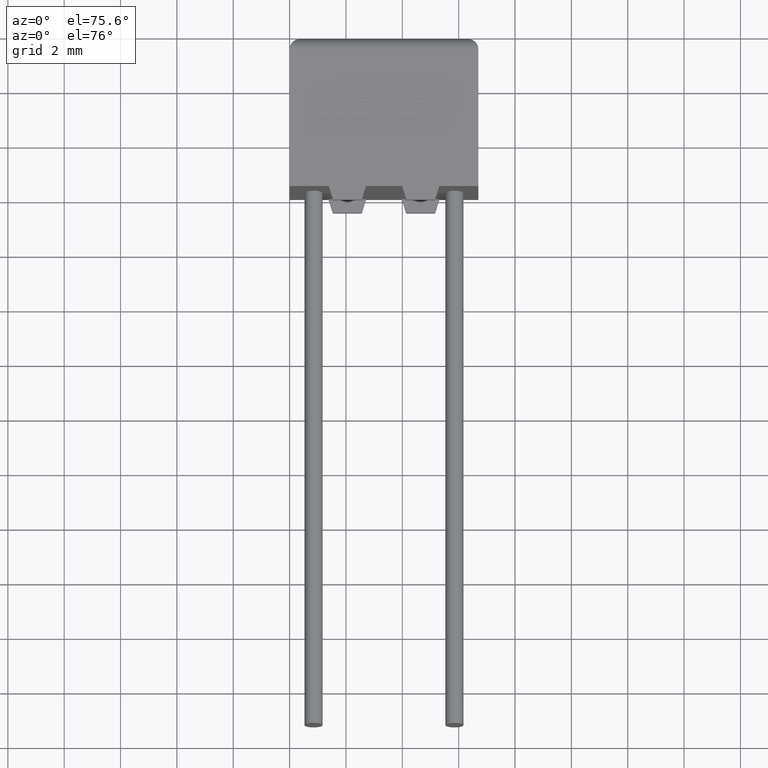
[diagram: clean part render]
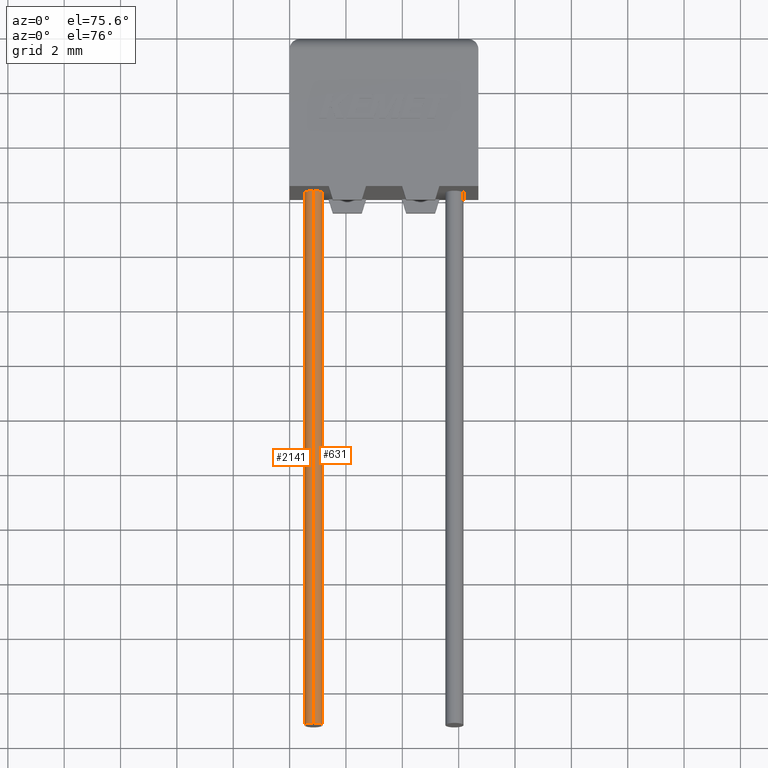
[diagram: same view with one multi-face feature highlighted, each face labeled with its STEP entity id]
A machine part, auxiliary view. The highlighted faces form ONE feature: a constant-radius fillet chain: 2 tangent blend faces with common blend radius 0.325 mm. The faces share edges in the B-rep.
Their STEP definitions:
[1] entity #631 (Cylinder):
#94 = AXIS2_PLACEMENT_3D ( 'NONE', #2441, #966, #3018 ) ;
#128 = CARTESIAN_POINT ( 'NONE',  ( 0.8500000000000000900, -19.50000000000000000, 1.000000000000000200 ) ) ;
#294 = EDGE_CURVE ( 'NONE', #1927, #1409, #2758, .T. ) ;
#319 = CARTESIAN_POINT ( 'NONE',  ( 0.8500000000000000900, 0.0000000000000000000, 1.325000000000000200 ) ) ;
#334 = CARTESIAN_POINT ( 'NONE',  ( 0.8500000000000000900, -19.50000000000000000, 1.325000000000000200 ) ) ;
#389 = CARTESIAN_POINT ( 'NONE',  ( 0.8500000000000000900, 0.0000000000000000000, 0.6750000000000002700 ) ) ;
#435 = ORIENTED_EDGE ( 'NONE', *, *, #1339, .T. ) ;
#555 = ORIENTED_EDGE ( 'NONE', *, *, #3115, .F. ) ;
#631 = ADVANCED_FACE ( 'NONE', ( #3191 ), #1085, .T. ) ;
#649 = CARTESIAN_POINT ( 'NONE',  ( 0.8500000000000000900, 0.0000000000000000000, 1.000000000000000200 ) ) ;
#836 = LINE ( 'NONE', #2413, #2748 ) ;
#862 = DIRECTION ( 'NONE',  ( -0.0000000000000000000, 1.000000000000000000, -0.0000000000000000000 ) ) ;
#875 = ORIENTED_EDGE ( 'NONE', *, *, #1188, .F. ) ;
#966 = DIRECTION ( 'NONE',  ( -0.0000000000000000000, 1.000000000000000000, -0.0000000000000000000 ) ) ;
#1085 = CYLINDRICAL_SURFACE ( 'NONE', #94, 0.3250000000000000100 ) ;
#1143 = DIRECTION ( 'NONE',  ( 0.0000000000000000000, -1.000000000000000000, 0.0000000000000000000 ) ) ;
#1151 = EDGE_LOOP ( 'NONE', ( #555, #435, #3132, #875 ) ) ;
#1168 = DIRECTION ( 'NONE',  ( -0.0000000000000000000, 1.000000000000000000, -0.0000000000000000000 ) ) ;
#1188 = EDGE_CURVE ( 'NONE', #1450, #1409, #836, .T. ) ;
#1230 = VERTEX_POINT ( 'NONE', #2924 ) ;
#1339 = EDGE_CURVE ( 'NONE', #1230, #1927, #1944, .T. ) ;
#1409 = VERTEX_POINT ( 'NONE', #319 ) ;
#1450 = VERTEX_POINT ( 'NONE', #334 ) ;
#1701 = AXIS2_PLACEMENT_3D ( 'NONE', #649, #2391, #1713 ) ;
#1713 = DIRECTION ( 'NONE',  ( 0.0000000000000000000, 0.0000000000000000000, 1.000000000000000000 ) ) ;
#1927 = VERTEX_POINT ( 'NONE', #389 ) ;
#1944 = LINE ( 'NONE', #2568, #2783 ) ;
#2239 = CIRCLE ( 'NONE', #2313, 0.3250000000000000100 ) ;
#2313 = AXIS2_PLACEMENT_3D ( 'NONE', #128, #1143, #3093 ) ;
#2391 = DIRECTION ( 'NONE',  ( -0.0000000000000000000, -1.000000000000000000, -0.0000000000000000000 ) ) ;
#2413 = CARTESIAN_POINT ( 'NONE',  ( 0.8500000000000000900, -19.50000000000000000, 1.325000000000000200 ) ) ;
#2441 = CARTESIAN_POINT ( 'NONE',  ( 0.8500000000000000900, -19.50000000000000000, 1.000000000000000200 ) ) ;
#2568 = CARTESIAN_POINT ( 'NONE',  ( 0.8500000000000000900, -19.50000000000000000, 0.6750000000000002700 ) ) ;
#2748 = VECTOR ( 'NONE', #1168, 1000.000000000000000 ) ;
#2758 = CIRCLE ( 'NONE', #1701, 0.3250000000000000100 ) ;
#2783 = VECTOR ( 'NONE', #862, 1000.000000000000000 ) ;
#2924 = CARTESIAN_POINT ( 'NONE',  ( 0.8500000000000000900, -19.50000000000000000, 0.6750000000000002700 ) ) ;
#3018 = DIRECTION ( 'NONE',  ( 0.0000000000000000000, 0.0000000000000000000, 1.000000000000000000 ) ) ;
#3093 = DIRECTION ( 'NONE',  ( 0.0000000000000000000, 0.0000000000000000000, -1.000000000000000000 ) ) ;
#3115 = EDGE_CURVE ( 'NONE', #1230, #1450, #2239, .T. ) ;
#3132 = ORIENTED_EDGE ( 'NONE', *, *, #294, .T. ) ;
#3191 = FACE_OUTER_BOUND ( 'NONE', #1151, .T. ) ;
[2] entity #2141 (Cylinder):
#143 = DIRECTION ( 'NONE',  ( 0.0000000000000000000, 0.0000000000000000000, 1.000000000000000000 ) ) ;
#174 = CARTESIAN_POINT ( 'NONE',  ( 0.8500000000000000900, -19.50000000000000000, 1.000000000000000200 ) ) ;
#221 = CIRCLE ( 'NONE', #3015, 0.3250000000000000100 ) ;
#313 = AXIS2_PLACEMENT_3D ( 'NONE', #2550, #513, #1063 ) ;
#319 = CARTESIAN_POINT ( 'NONE',  ( 0.8500000000000000900, 0.0000000000000000000, 1.325000000000000200 ) ) ;
#334 = CARTESIAN_POINT ( 'NONE',  ( 0.8500000000000000900, -19.50000000000000000, 1.325000000000000200 ) ) ;
#389 = CARTESIAN_POINT ( 'NONE',  ( 0.8500000000000000900, 0.0000000000000000000, 0.6750000000000002700 ) ) ;
#429 = DIRECTION ( 'NONE',  ( 0.0000000000000000000, -1.000000000000000000, 0.0000000000000000000 ) ) ;
#463 = FACE_OUTER_BOUND ( 'NONE', #1779, .T. ) ;
#495 = CIRCLE ( 'NONE', #676, 0.3250000000000000100 ) ;
#513 = DIRECTION ( 'NONE',  ( -0.0000000000000000000, 1.000000000000000000, -0.0000000000000000000 ) ) ;
#676 = AXIS2_PLACEMENT_3D ( 'NONE', #174, #429, #2442 ) ;
#836 = LINE ( 'NONE', #2413, #2748 ) ;
#862 = DIRECTION ( 'NONE',  ( -0.0000000000000000000, 1.000000000000000000, -0.0000000000000000000 ) ) ;
#908 = CYLINDRICAL_SURFACE ( 'NONE', #313, 0.3250000000000000100 ) ;
#1063 = DIRECTION ( 'NONE',  ( 0.0000000000000000000, 0.0000000000000000000, 1.000000000000000000 ) ) ;
#1133 = ORIENTED_EDGE ( 'NONE', *, *, #2103, .F. ) ;
#1168 = DIRECTION ( 'NONE',  ( -0.0000000000000000000, 1.000000000000000000, -0.0000000000000000000 ) ) ;
#1188 = EDGE_CURVE ( 'NONE', #1450, #1409, #836, .T. ) ;
#1230 = VERTEX_POINT ( 'NONE', #2924 ) ;
#1276 = ORIENTED_EDGE ( 'NONE', *, *, #1188, .T. ) ;
#1339 = EDGE_CURVE ( 'NONE', #1230, #1927, #1944, .T. ) ;
#1409 = VERTEX_POINT ( 'NONE', #319 ) ;
#1450 = VERTEX_POINT ( 'NONE', #334 ) ;
#1519 = ORIENTED_EDGE ( 'NONE', *, *, #2254, .T. ) ;
#1779 = EDGE_LOOP ( 'NONE', ( #2234, #1133, #1276, #1519 ) ) ;
#1927 = VERTEX_POINT ( 'NONE', #389 ) ;
#1944 = LINE ( 'NONE', #2568, #2783 ) ;
#2103 = EDGE_CURVE ( 'NONE', #1450, #1230, #495, .T. ) ;
#2141 = ADVANCED_FACE ( 'NONE', ( #463 ), #908, .T. ) ;
#2234 = ORIENTED_EDGE ( 'NONE', *, *, #1339, .F. ) ;
#2254 = EDGE_CURVE ( 'NONE', #1409, #1927, #221, .T. ) ;
#2383 = CARTESIAN_POINT ( 'NONE',  ( 0.8500000000000000900, 0.0000000000000000000, 1.000000000000000200 ) ) ;
#2413 = CARTESIAN_POINT ( 'NONE',  ( 0.8500000000000000900, -19.50000000000000000, 1.325000000000000200 ) ) ;
#2442 = DIRECTION ( 'NONE',  ( 0.0000000000000000000, 0.0000000000000000000, -1.000000000000000000 ) ) ;
#2550 = CARTESIAN_POINT ( 'NONE',  ( 0.8500000000000000900, -19.50000000000000000, 1.000000000000000200 ) ) ;
#2568 = CARTESIAN_POINT ( 'NONE',  ( 0.8500000000000000900, -19.50000000000000000, 0.6750000000000002700 ) ) ;
#2627 = DIRECTION ( 'NONE',  ( -0.0000000000000000000, -1.000000000000000000, -0.0000000000000000000 ) ) ;
#2748 = VECTOR ( 'NONE', #1168, 1000.000000000000000 ) ;
#2783 = VECTOR ( 'NONE', #862, 1000.000000000000000 ) ;
#2924 = CARTESIAN_POINT ( 'NONE',  ( 0.8500000000000000900, -19.50000000000000000, 0.6750000000000002700 ) ) ;
#3015 = AXIS2_PLACEMENT_3D ( 'NONE', #2383, #2627, #143 ) ;